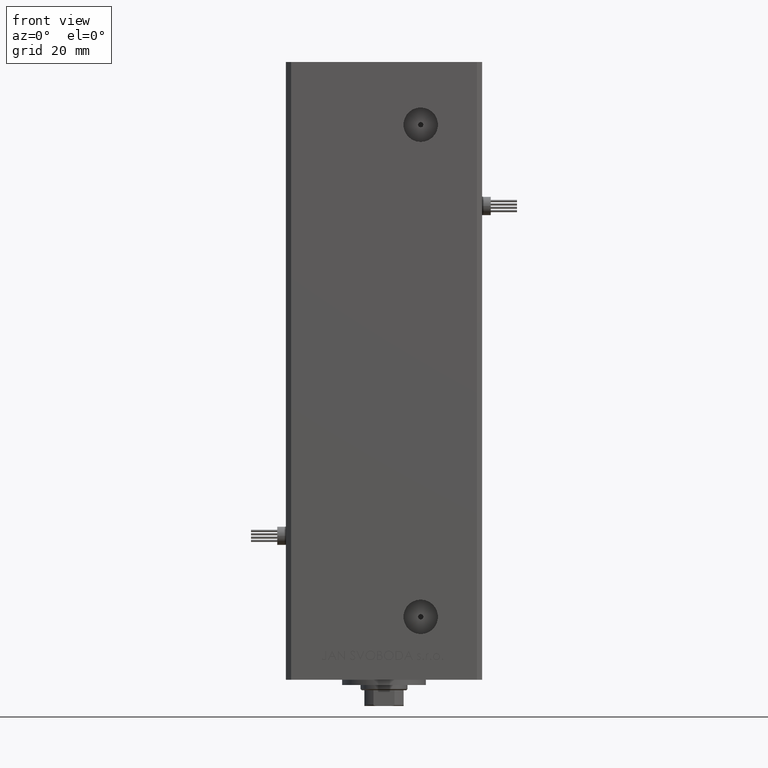
[diagram: clean part render]
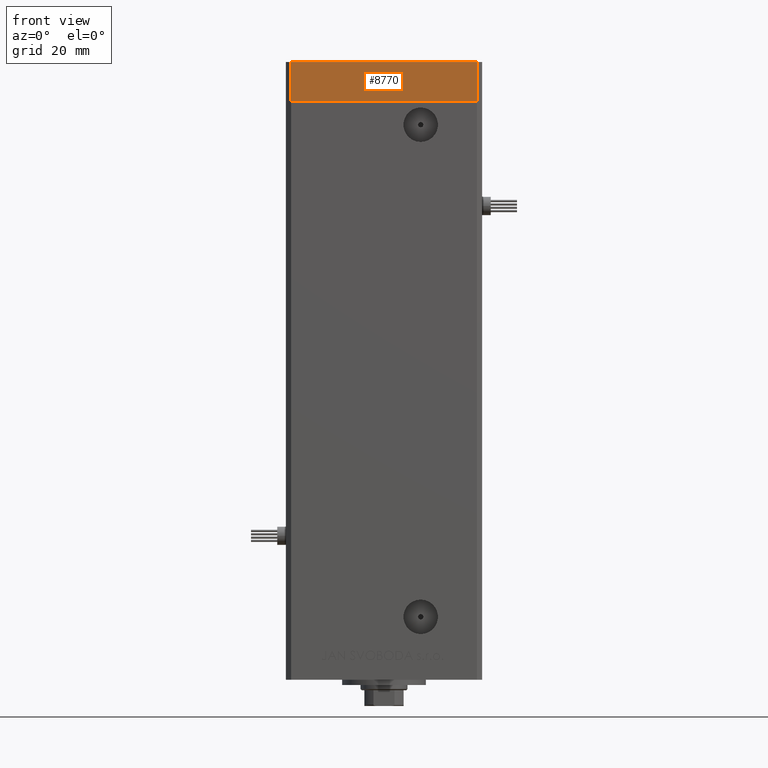
[diagram: same view with one face highlighted and labeled with its STEP entity id]
A machine part, front view. The second image highlights one B-rep face of the part: STEP entity #8770.
In plain terms, the highlighted planar face has unit normal (0, -1, 0).
Its self-contained STEP definition (entity closure, byte-faithful):
#92 = ORIENTED_EDGE ( 'NONE', *, *, #8852, .T. ) ;
#1769 = CARTESIAN_POINT ( 'NONE',  ( 35.50000000000000711, -32.50000000000000711, -15.00000000000000000 ) ) ;
#2072 = VECTOR ( 'NONE', #36601, 1000.000000000000000 ) ;
#4596 = LINE ( 'NONE', #8082, #52309 ) ;
#6485 = DIRECTION ( 'NONE',  ( 1.000000000000000000, 9.773090005503140331E-17, 0.000000000000000000 ) ) ;
#8051 = CARTESIAN_POINT ( 'NONE',  ( 35.50000000000000711, -32.50000000000000711, -15.00000000000000000 ) ) ;
#8082 = CARTESIAN_POINT ( 'NONE',  ( -35.49999999999998579, -32.50000000000001421, -15.00000000000000000 ) ) ;
#8770 = ADVANCED_FACE ( 'NONE', ( #51267 ), #35286, .T. ) ;
#8852 = EDGE_CURVE ( 'NONE', #35993, #14149, #41119, .T. ) ;
#10208 = ORIENTED_EDGE ( 'NONE', *, *, #11776, .F. ) ;
#11776 = EDGE_CURVE ( 'NONE', #35993, #40765, #4596, .T. ) ;
#12610 = CARTESIAN_POINT ( 'NONE',  ( 35.50000000000000711, -32.50000000000000711, 0.000000000000000000 ) ) ;
#14149 = VERTEX_POINT ( 'NONE', #1769 ) ;
#14242 = LINE ( 'NONE', #42226, #22613 ) ;
#16591 = DIRECTION ( 'NONE',  ( 0.000000000000000000, 0.000000000000000000, 1.000000000000000000 ) ) ;
#17415 = EDGE_CURVE ( 'NONE', #40765, #31739, #14242, .T. ) ;
#17471 = ORIENTED_EDGE ( 'NONE', *, *, #37877, .T. ) ;
#22613 = VECTOR ( 'NONE', #34257, 1000.000000000000000 ) ;
#24726 = EDGE_LOOP ( 'NONE', ( #33775, #10208, #92, #17471 ) ) ;
#28096 = DIRECTION ( 'NONE',  ( 9.773090005503140331E-17, -1.000000000000000000, 0.000000000000000000 ) ) ;
#30191 = CARTESIAN_POINT ( 'NONE',  ( -35.49999999999998579, -32.50000000000001421, -15.00000000000000000 ) ) ;
#31739 = VERTEX_POINT ( 'NONE', #12610 ) ;
#31822 = CARTESIAN_POINT ( 'NONE',  ( -35.49999999999998579, -32.50000000000001421, -15.00000000000000000 ) ) ;
#33775 = ORIENTED_EDGE ( 'NONE', *, *, #17415, .F. ) ;
#34257 = DIRECTION ( 'NONE',  ( 1.000000000000000000, 9.773090005503140331E-17, 0.000000000000000000 ) ) ;
#35286 = PLANE ( 'NONE',  #37832 ) ;
#35993 = VERTEX_POINT ( 'NONE', #30191 ) ;
#36318 = DIRECTION ( 'NONE',  ( 0.000000000000000000, 0.000000000000000000, 1.000000000000000000 ) ) ;
#36601 = DIRECTION ( 'NONE',  ( 1.000000000000000000, 9.773090005503140331E-17, 0.000000000000000000 ) ) ;
#37832 = AXIS2_PLACEMENT_3D ( 'NONE', #31822, #28096, #6485 ) ;
#37877 = EDGE_CURVE ( 'NONE', #14149, #31739, #44557, .T. ) ;
#39276 = VECTOR ( 'NONE', #36318, 1000.000000000000000 ) ;
#40765 = VERTEX_POINT ( 'NONE', #41087 ) ;
#41087 = CARTESIAN_POINT ( 'NONE',  ( -35.49999999999998579, -32.50000000000001421, 0.000000000000000000 ) ) ;
#41119 = LINE ( 'NONE', #52600, #2072 ) ;
#42226 = CARTESIAN_POINT ( 'NONE',  ( -35.49999999999998579, -32.50000000000001421, 0.000000000000000000 ) ) ;
#44557 = LINE ( 'NONE', #8051, #39276 ) ;
#51267 = FACE_OUTER_BOUND ( 'NONE', #24726, .T. ) ;
#52309 = VECTOR ( 'NONE', #16591, 1000.000000000000000 ) ;
#52600 = CARTESIAN_POINT ( 'NONE',  ( -35.49999999999998579, -32.50000000000001421, -15.00000000000000000 ) ) ;